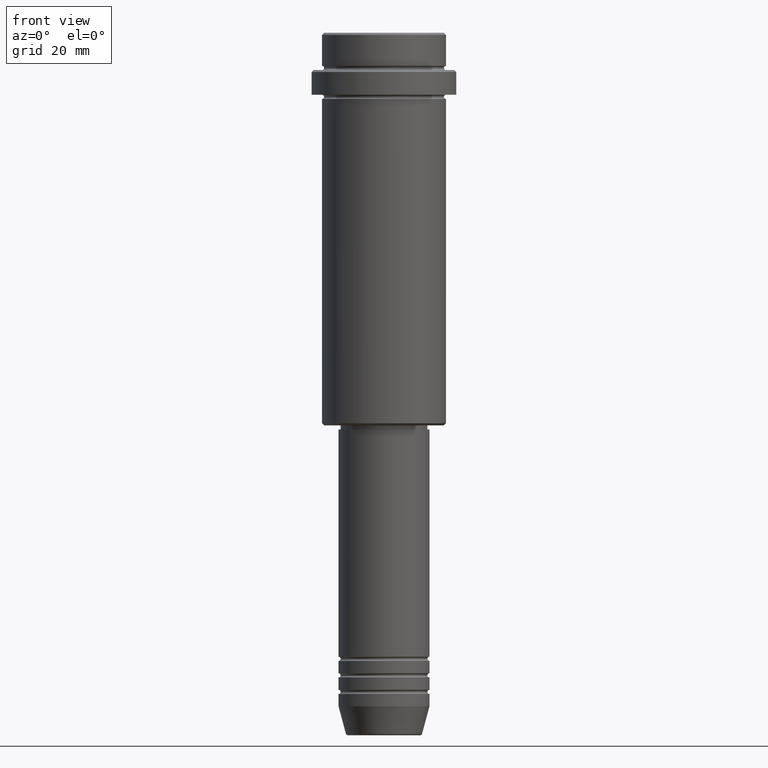
[diagram: clean part render]
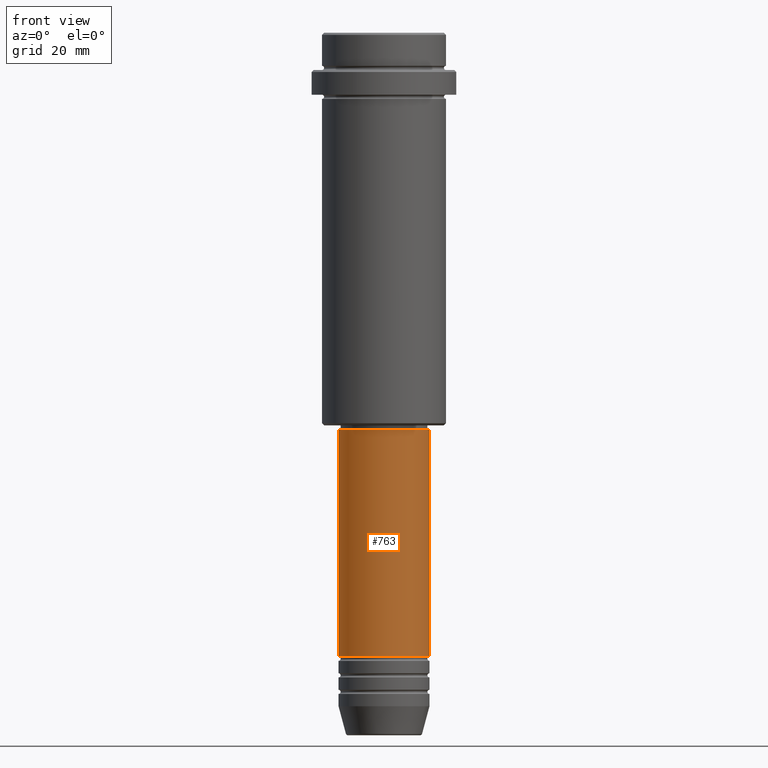
[diagram: same view with one face highlighted and labeled with its STEP entity id]
A machine part, front view. The second image highlights one B-rep face of the part: STEP entity #763.
In plain terms, the highlighted cylindrical surface (partial cylindrical patch) has radius 11 mm, axis along (-0, -0, 1).
Its self-contained STEP definition (entity closure, byte-faithful):
#4 = DIRECTION ( 'NONE',  ( -0.000000000000000000, -0.000000000000000000, 1.000000000000000000 ) ) ;
#14 = FACE_OUTER_BOUND ( 'NONE', #232, .T. ) ;
#22 = LINE ( 'NONE', #455, #60 ) ;
#26 = CARTESIAN_POINT ( 'NONE',  ( -10.99999999999999822, 1.347111479062088207E-15, -96.00000000000000000 ) ) ;
#60 = VECTOR ( 'NONE', #1330, 1000.000000000000000 ) ;
#82 = DIRECTION ( 'NONE',  ( 1.000000000000000000, 0.000000000000000000, 0.000000000000000000 ) ) ;
#91 = VERTEX_POINT ( 'NONE', #26 ) ;
#117 = VERTEX_POINT ( 'NONE', #272 ) ;
#145 = ORIENTED_EDGE ( 'NONE', *, *, #249, .F. ) ;
#232 = EDGE_LOOP ( 'NONE', ( #145, #1132, #1373, #385 ) ) ;
#249 = EDGE_CURVE ( 'NONE', #1189, #91, #481, .T. ) ;
#272 = CARTESIAN_POINT ( 'NONE',  ( 10.99999999999999822, 0.000000000000000000, -96.00000000000000000 ) ) ;
#313 = CARTESIAN_POINT ( 'NONE',  ( 0.000000000000000000, 0.000000000000000000, 0.000000000000000000 ) ) ;
#358 = CIRCLE ( 'NONE', #515, 10.99999999999999822 ) ;
#385 = ORIENTED_EDGE ( 'NONE', *, *, #1077, .F. ) ;
#455 = CARTESIAN_POINT ( 'NONE',  ( 11.00000000000000000, 0.000000000000000000, 0.000000000000000000 ) ) ;
#481 = LINE ( 'NONE', #1219, #818 ) ;
#515 = AXIS2_PLACEMENT_3D ( 'NONE', #844, #719, #82 ) ;
#580 = EDGE_CURVE ( 'NONE', #1189, #984, #631, .T. ) ;
#631 = CIRCLE ( 'NONE', #653, 11.00000000000000000 ) ;
#645 = CYLINDRICAL_SURFACE ( 'NONE', #1413, 11.00000000000000000 ) ;
#653 = AXIS2_PLACEMENT_3D ( 'NONE', #955, #1176, #837 ) ;
#719 = DIRECTION ( 'NONE',  ( -0.000000000000000000, -0.000000000000000000, 1.000000000000000000 ) ) ;
#763 = ADVANCED_FACE ( 'NONE', ( #14 ), #645, .T. ) ;
#781 = CARTESIAN_POINT ( 'NONE',  ( -11.00000000000000000, 1.347111479062088405E-15, -150.9999999999999147 ) ) ;
#818 = VECTOR ( 'NONE', #4, 1000.000000000000000 ) ;
#837 = DIRECTION ( 'NONE',  ( 1.000000000000000000, 0.000000000000000000, 0.000000000000000000 ) ) ;
#844 = CARTESIAN_POINT ( 'NONE',  ( 0.000000000000000000, 0.000000000000000000, -96.00000000000000000 ) ) ;
#955 = CARTESIAN_POINT ( 'NONE',  ( 0.000000000000000000, 0.000000000000000000, -150.9999999999999147 ) ) ;
#984 = VERTEX_POINT ( 'NONE', #1161 ) ;
#1077 = EDGE_CURVE ( 'NONE', #91, #117, #358, .T. ) ;
#1132 = ORIENTED_EDGE ( 'NONE', *, *, #580, .T. ) ;
#1161 = CARTESIAN_POINT ( 'NONE',  ( 11.00000000000000000, 0.000000000000000000, -150.9999999999999147 ) ) ;
#1176 = DIRECTION ( 'NONE',  ( -0.000000000000000000, -0.000000000000000000, 1.000000000000000000 ) ) ;
#1189 = VERTEX_POINT ( 'NONE', #781 ) ;
#1213 = DIRECTION ( 'NONE',  ( -0.000000000000000000, -0.000000000000000000, 1.000000000000000000 ) ) ;
#1219 = CARTESIAN_POINT ( 'NONE',  ( -11.00000000000000000, 1.347111479062088405E-15, 0.000000000000000000 ) ) ;
#1270 = EDGE_CURVE ( 'NONE', #984, #117, #22, .T. ) ;
#1330 = DIRECTION ( 'NONE',  ( -0.000000000000000000, -0.000000000000000000, 1.000000000000000000 ) ) ;
#1373 = ORIENTED_EDGE ( 'NONE', *, *, #1270, .T. ) ;
#1411 = DIRECTION ( 'NONE',  ( 1.000000000000000000, 0.000000000000000000, 0.000000000000000000 ) ) ;
#1413 = AXIS2_PLACEMENT_3D ( 'NONE', #313, #1213, #1411 ) ;